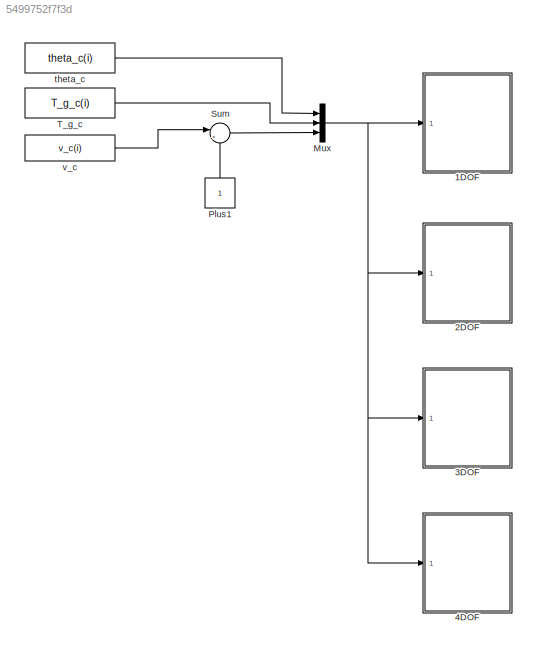
MODEL slx_5499752f7f3d
KIND model
CONFIG AbsTol = auto
CONFIG FixedStep = auto
CONFIG MaxStep = auto
CONFIG MinStep = auto
CONFIG RelTol = 1e-3
CONFIG SampleTimeConstraint = Unconstrained
CONFIG Solver = VariableStepAuto
CONFIG SolverMode = Auto
CONFIG SolverName = VariableStepAuto
CONFIG StartTime = 0.0
CONFIG StopTime = 10.0
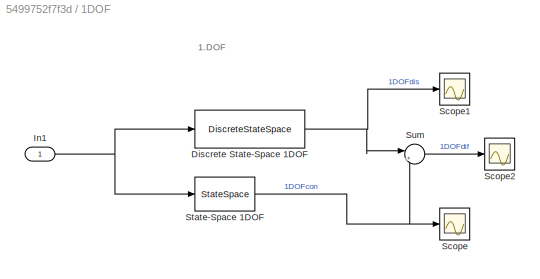
BLOCK [SubSystem] 1DOF
  Ports = [1]
  RequestExecContextInheritance = off
  Variant = off
BLOCK [DiscreteStateSpace] 1DOF/Discrete State-Space 1DOF
  A = apAD1{i}
  B = apBD1{i}
  C = C1
  D = D1
  SampleTime = T_s
BLOCK [Inport] 1DOF/In1
  IconDisplay = Port number
BLOCK [Scope] 1DOF/Scope
  Ports = [1]
  ScopeSpecificationString = C++SS(StrPVP('SaveName','ScopeData'))
BLOCK [Scope] 1DOF/Scope1
  Ports = [1]
  ScopeSpecificationString = C++SS(StrPVP('SaveName','ScopeData'),StrPVP('SaveName','ScopeData1'))
BLOCK [Scope] 1DOF/Scope2
  Ports = [1]
  ScopeSpecificationString = C++SS(StrPVP('SaveName','ScopeData'),StrPVP('SaveName','ScopeData1'),StrPVP('SaveName','ScopeData2'))
BLOCK [StateSpace] 1DOF/State-Space 1DOF 
  A = apAC1{i}
  B = apBC1{i}
  C = C1
  D = D1
  Ports = [1, 1]
  X0 = 0
BLOCK [Sum] 1DOF/Sum
  IconShape = round
  InputSameDT = off
  Inputs = |+-
  OutDataTypeStr = Inherit: Inherit via internal rule
  Ports = [2, 1]
  SaturateOnIntegerOverflow = off
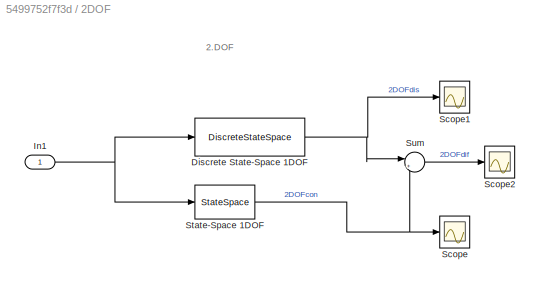
BLOCK [SubSystem] 2DOF
  Ports = [1]
  RequestExecContextInheritance = off
  Variant = off
BLOCK [DiscreteStateSpace] 2DOF/Discrete State-Space 1DOF
  A = apAD2{i}
  B = apBD2{i}
  C = C2
  D = D2
  SampleTime = T_s
BLOCK [Inport] 2DOF/In1
  IconDisplay = Port number
BLOCK [Scope] 2DOF/Scope
  Ports = [1]
  ScopeSpecificationString = C++SS(StrPVP('SaveName','ScopeData'))
BLOCK [Scope] 2DOF/Scope1
  Ports = [1]
  ScopeSpecificationString = C++SS(StrPVP('SaveName','ScopeData'),StrPVP('SaveName','ScopeData1'))
BLOCK [Scope] 2DOF/Scope2
  Ports = [1]
  ScopeSpecificationString = C++SS(StrPVP('SaveName','ScopeData'),StrPVP('SaveName','ScopeData1'),StrPVP('SaveName','ScopeData2'))
BLOCK [StateSpace] 2DOF/State-Space 1DOF 
  A = apAC2{i}
  B = apBC2{i}
  C = C2
  D = D2
  Ports = [1, 1]
  X0 = 0
BLOCK [Sum] 2DOF/Sum
  IconShape = round
  InputSameDT = off
  Inputs = |+-
  OutDataTypeStr = Inherit: Inherit via internal rule
  Ports = [2, 1]
  SaturateOnIntegerOverflow = off
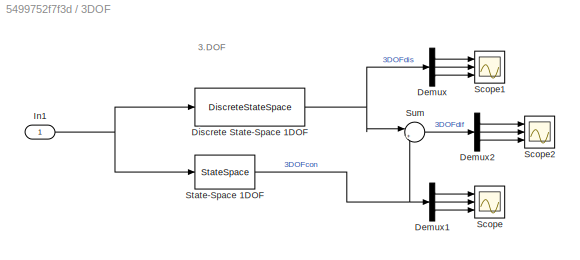
BLOCK [SubSystem] 3DOF
  Ports = [1]
  RequestExecContextInheritance = off
  Variant = off
BLOCK [Demux] 3DOF/Demux
  DisplayOption = bar
  Outputs = 3
  Ports = [1, 3]
BLOCK [Demux] 3DOF/Demux1
  DisplayOption = bar
  Outputs = 3
  Ports = [1, 3]
BLOCK [Demux] 3DOF/Demux2
  DisplayOption = bar
  Outputs = 3
  Ports = [1, 3]
BLOCK [DiscreteStateSpace] 3DOF/Discrete State-Space 1DOF
  A = apAD3{i}
  B = apBD3{i}
  C = C3
  D = D3
  SampleTime = T_s
BLOCK [Inport] 3DOF/In1
  IconDisplay = Port number
BLOCK [Scope] 3DOF/Scope
  NumInputPorts = 3
  Ports = [3]
  ScopeSpecificationString = Simulink.scopes.TimeScopeBlockCfg('CurrentConfiguration', extmgr.ConfigurationSet(extmgr.Configuration('Core','General UI',true),extmgr.Configuration('Core','Source UI',true),extmgr.Configuration('Sources','WiredSimulink',true),extmgr.Configuration('Visuals','Time Domain',true,'SerializedDisplays',{struct('MinYLimReal','-0.50595','MaxYLimReal','0.05622','YLabelReal','','MinYLimMag','0.00000','MaxY...<+2612ch>
BLOCK [Scope] 3DOF/Scope1
  NumInputPorts = 3
  Ports = [3]
  ScopeSpecificationString = Simulink.scopes.TimeScopeBlockCfg('CurrentConfiguration', extmgr.ConfigurationSet(extmgr.Configuration('Core','General UI',true),extmgr.Configuration('Core','Source UI',true),extmgr.Configuration('Sources','WiredSimulink',true,'DataLoggingVariableName','ScopeData1'),extmgr.Configuration('Visuals','Time Domain',true,'SerializedDisplays',{struct('MinYLimReal','-0.50602','MaxYLimReal','0.05622','YLab...<+2644ch>
BLOCK [Scope] 3DOF/Scope2
  NumInputPorts = 3
  Ports = [3]
  ScopeSpecificationString = Simulink.scopes.TimeScopeBlockCfg('CurrentConfiguration', extmgr.ConfigurationSet(extmgr.Configuration('Core','General UI',true),extmgr.Configuration('Core','Source UI',true),extmgr.Configuration('Sources','WiredSimulink',true,'DataLoggingVariableName','ScopeData2'),extmgr.Configuration('Visuals','Time Domain',true,'SerializedDisplays',{struct('MinYLimReal','-0.00226','MaxYLimReal','0.01975','YLab...<+2650ch>
BLOCK [StateSpace] 3DOF/State-Space 1DOF 
  A = apAC3{i}
  B = apBC3{i}
  C = C3
  D = D3
  Ports = [1, 1]
  X0 = 0
BLOCK [Sum] 3DOF/Sum
  IconShape = round
  InputSameDT = off
  Inputs = |+-
  OutDataTypeStr = Inherit: Inherit via internal rule
  Ports = [2, 1]
  SaturateOnIntegerOverflow = off
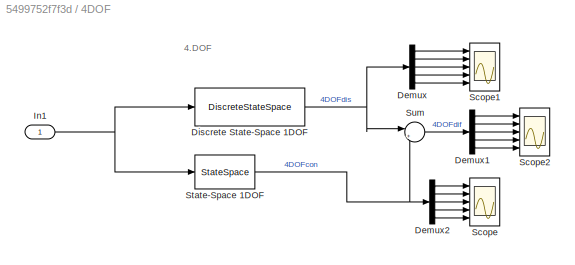
BLOCK [SubSystem] 4DOF
  Ports = [1]
  RequestExecContextInheritance = off
  Variant = off
BLOCK [Demux] 4DOF/Demux
  DisplayOption = bar
  Outputs = 5
  Ports = [1, 5]
BLOCK [Demux] 4DOF/Demux1
  DisplayOption = bar
  Outputs = 5
  Ports = [1, 5]
BLOCK [Demux] 4DOF/Demux2
  DisplayOption = bar
  Outputs = 5
  Ports = [1, 5]
BLOCK [DiscreteStateSpace] 4DOF/Discrete State-Space 1DOF
  A = apAD4{i}
  B = apBD4{i}
  C = C4
  D = D4
  SampleTime = T_s
BLOCK [Inport] 4DOF/In1
  IconDisplay = Port number
BLOCK [Scope] 4DOF/Scope
  NumInputPorts = 5
  Ports = [5]
  ScopeSpecificationString = Simulink.scopes.TimeScopeBlockCfg('CurrentConfiguration', extmgr.ConfigurationSet(extmgr.Configuration('Core','General UI',true),extmgr.Configuration('Core','Source UI',true),extmgr.Configuration('Sources','WiredSimulink',true),extmgr.Configuration('Visuals','Time Domain',true,'SerializedDisplays',{struct('MinYLimReal','-0.50595','MaxYLimReal','0.05622','YLabelReal','','MinYLimMag','0.00000','MaxY...<+4684ch>
BLOCK [Scope] 4DOF/Scope1
  NumInputPorts = 5
  Ports = [5]
  ScopeSpecificationString = Simulink.scopes.TimeScopeBlockCfg('CurrentConfiguration', extmgr.ConfigurationSet(extmgr.Configuration('Core','General UI',true),extmgr.Configuration('Core','Source UI',true),extmgr.Configuration('Sources','WiredSimulink',true,'DataLoggingVariableName','ScopeData1'),extmgr.Configuration('Visuals','Time Domain',true,'SerializedDisplays',{struct('MinYLimReal','-0.50595','MaxYLimReal','0.05622','YLab...<+4718ch>
BLOCK [Scope] 4DOF/Scope2
  NumInputPorts = 5
  Ports = [5]
  ScopeSpecificationString = Simulink.scopes.TimeScopeBlockCfg('CurrentConfiguration', extmgr.ConfigurationSet(extmgr.Configuration('Core','General UI',true),extmgr.Configuration('Core','Source UI',true),extmgr.Configuration('Sources','WiredSimulink',true,'DataLoggingVariableName','ScopeData2'),extmgr.Configuration('Visuals','Time Domain',true,'SerializedDisplays',{struct('MinYLimReal','-0.00065','MaxYLimReal','0.0058','YLabe...<+4719ch>
BLOCK [StateSpace] 4DOF/State-Space 1DOF 
  A = apAC4{i}
  B = apBC4{i}
  C = C4
  D = D4
  Ports = [1, 1]
  X0 = 0
BLOCK [Sum] 4DOF/Sum
  IconShape = round
  InputSameDT = off
  Inputs = |+-
  OutDataTypeStr = Inherit: Inherit via internal rule
  Ports = [2, 1]
  SaturateOnIntegerOverflow = off
BLOCK [Mux] Mux
  DisplayOption = bar
  Inputs = 3
  Ports = [3, 1]
BLOCK [Constant] Plus1
BLOCK [Sum] Sum
  IconShape = round
  InputSameDT = off
  Inputs = |++
  OutDataTypeStr = Inherit: Inherit via internal rule
  Ports = [2, 1]
  SaturateOnIntegerOverflow = off
BLOCK [Constant] T_g_c
  Value = T_g_c(i)
BLOCK [Constant] theta_c
  Value = theta_c(i)
BLOCK [Constant] v_c
  Value = v_c(i)
ANNOTATION 1DOF: 1.DOF
ANNOTATION 2DOF: 2.DOF
ANNOTATION 3DOF: 3.DOF
ANNOTATION 4DOF: 4.DOF
NET 1DOF/Discrete State-Space 1DOF:1 -> 1DOF/Scope1:1, 1DOF/Sum:1
NET 1DOF/In1:1 -> 1DOF/Discrete State-Space 1DOF:1, 1DOF/State-Space 1DOF :1
NET 1DOF/State-Space 1DOF :1 -> 1DOF/Scope:1, 1DOF/Sum:2
LINE 1DOF/Sum:1 -> 1DOF/Scope2:1
NET 2DOF/Discrete State-Space 1DOF:1 -> 2DOF/Scope1:1, 2DOF/Sum:1
NET 2DOF/In1:1 -> 2DOF/Discrete State-Space 1DOF:1, 2DOF/State-Space 1DOF :1
NET 2DOF/State-Space 1DOF :1 -> 2DOF/Scope:1, 2DOF/Sum:2
LINE 2DOF/Sum:1 -> 2DOF/Scope2:1
LINE 3DOF/Demux1:1 -> 3DOF/Scope:1
LINE 3DOF/Demux1:2 -> 3DOF/Scope:2
LINE 3DOF/Demux1:3 -> 3DOF/Scope:3
LINE 3DOF/Demux2:1 -> 3DOF/Scope2:1
LINE 3DOF/Demux2:2 -> 3DOF/Scope2:2
LINE 3DOF/Demux2:3 -> 3DOF/Scope2:3
LINE 3DOF/Demux:1 -> 3DOF/Scope1:1
LINE 3DOF/Demux:2 -> 3DOF/Scope1:2
LINE 3DOF/Demux:3 -> 3DOF/Scope1:3
NET 3DOF/Discrete State-Space 1DOF:1 -> 3DOF/Demux:1, 3DOF/Sum:1
NET 3DOF/In1:1 -> 3DOF/Discrete State-Space 1DOF:1, 3DOF/State-Space 1DOF :1
NET 3DOF/State-Space 1DOF :1 -> 3DOF/Demux1:1, 3DOF/Sum:2
LINE 3DOF/Sum:1 -> 3DOF/Demux2:1
LINE 4DOF/Demux1:1 -> 4DOF/Scope2:1
LINE 4DOF/Demux1:2 -> 4DOF/Scope2:2
LINE 4DOF/Demux1:3 -> 4DOF/Scope2:3
LINE 4DOF/Demux1:4 -> 4DOF/Scope2:4
LINE 4DOF/Demux1:5 -> 4DOF/Scope2:5
LINE 4DOF/Demux2:1 -> 4DOF/Scope:1
LINE 4DOF/Demux2:2 -> 4DOF/Scope:2
LINE 4DOF/Demux2:3 -> 4DOF/Scope:3
LINE 4DOF/Demux2:4 -> 4DOF/Scope:4
LINE 4DOF/Demux2:5 -> 4DOF/Scope:5
LINE 4DOF/Demux:1 -> 4DOF/Scope1:1
LINE 4DOF/Demux:2 -> 4DOF/Scope1:2
LINE 4DOF/Demux:3 -> 4DOF/Scope1:3
LINE 4DOF/Demux:4 -> 4DOF/Scope1:4
LINE 4DOF/Demux:5 -> 4DOF/Scope1:5
NET 4DOF/Discrete State-Space 1DOF:1 -> 4DOF/Demux:1, 4DOF/Sum:1
NET 4DOF/In1:1 -> 4DOF/Discrete State-Space 1DOF:1, 4DOF/State-Space 1DOF :1
NET 4DOF/State-Space 1DOF :1 -> 4DOF/Demux2:1, 4DOF/Sum:2
LINE 4DOF/Sum:1 -> 4DOF/Demux1:1
NET Mux:1 -> 1DOF:1, 2DOF:1, 3DOF:1, 4DOF:1
LINE Plus1:1 -> Sum:2
LINE Sum:1 -> Mux:3
LINE T_g_c:1 -> Mux:2
LINE theta_c:1 -> Mux:1
LINE v_c:1 -> Sum:1
note: NET lines group one-source signal fan-out (src -> all destinations, sorted); 1:1 wires keep LINE
